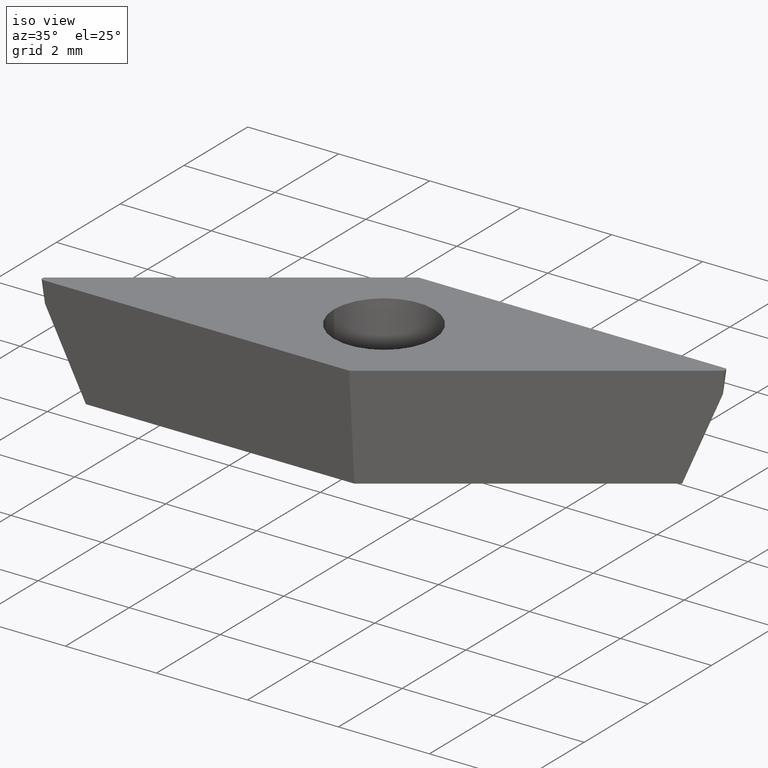
[diagram: clean part render]
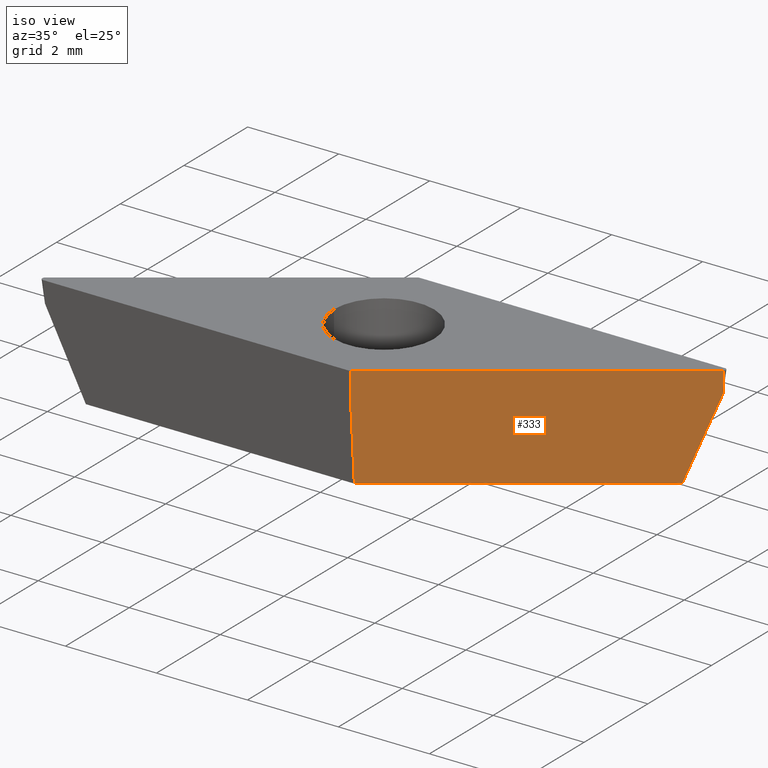
[diagram: same view with one face highlighted and labeled with its STEP entity id]
A machine part, iso view. The second image highlights one B-rep face of the part: STEP entity #333.
In plain terms, the highlighted face is a freeform B-spline surface patch.
Its self-contained STEP definition (entity closure, byte-faithful):
#14 = B_SPLINE_SURFACE_WITH_KNOTS ( 'NONE', 1, 3, ( 
 ( #274, #261, #273, #279 ),
 ( #278, #276, #286, #283 ) ),
 .UNSPECIFIED., .F., .F., .F.,
 ( 2, 2 ),
 ( 4, 4 ),
 ( 0.0000000000000000000, 1.000000000000000000 ),
 ( -0.006902565851283074700, -0.0001902956881417941400 ),
 .UNSPECIFIED. ) ;
#22 = EDGE_CURVE ( 'NONE', #332, #444, #191, .T. ) ;
#35 = EDGE_CURVE ( 'NONE', #318, #332, #443, .T. ) ;
#43 = CARTESIAN_POINT ( 'NONE',  ( 0.5337291963620123300, -1.692772745051087200, -2.379999999999999900 ) ) ;
#73 = FACE_OUTER_BOUND ( 'NONE', #364, .T. ) ;
#101 = CARTESIAN_POINT ( 'NONE',  ( 0.6413647547731018400, -1.974149122657340700, 0.0000000000000000000 ) ) ;
#108 = CARTESIAN_POINT ( 'NONE',  ( 5.737054617167976800, 1.808886372525546200, -1.434330392839228400 ) ) ;
#117 = VERTEX_POINT ( 'NONE', #317 ) ;
#119 = EDGE_CURVE ( 'NONE', #453, #378, #183, .T. ) ;
#121 = EDGE_CURVE ( 'NONE', #444, #378, #235, .T. ) ;
#125 = CARTESIAN_POINT ( 'NONE',  ( 6.105319994549239100, 1.925000000000001400, -0.4886607856784761000 ) ) ;
#130 = DIRECTION ( 'NONE',  ( 0.06990138369076599700, -0.09982952178648427100, 0.9925461516413219800 ) ) ;
#131 = LINE ( 'NONE', #176, #168 ) ;
#137 = DIRECTION ( 'NONE',  ( 0.8191520442889946900, 0.5735764363510419400, -0.0000000000000000000 ) ) ;
#140 = VECTOR ( 'NONE', #130, 1000.000000000000000 ) ;
#150 = CARTESIAN_POINT ( 'NONE',  ( 0.6069501685920401000, -1.925000000000002000, -0.4886607856784640500 ) ) ;
#168 = VECTOR ( 'NONE', #402, 1000.000000000000000 ) ;
#176 = CARTESIAN_POINT ( 'NONE',  ( 0.6413647547731018400, -1.974149122657340700, 0.0000000000000000000 ) ) ;
#179 = VECTOR ( 'NONE', #137, 1000.000000000000000 ) ;
#183 = LINE ( 'NONE', #190, #179 ) ;
#188 = CARTESIAN_POINT ( 'NONE',  ( 0.5459326917336836400, -1.731477287542573000, -2.064776797613077100 ) ) ;
#190 = CARTESIAN_POINT ( 'NONE',  ( 6.295615682691037700, 1.985000000000001400, 0.0000000000000000000 ) ) ;
#191 = B_SPLINE_CURVE_WITH_KNOTS ( 'NONE', 3,
 ( #431, #368, #370, #108, #464, #338, #376 ),
 .UNSPECIFIED., .F., .F.,
 ( 4, 3, 4 ),
 ( 0.0000000000000000000, 0.001021465989923606000, 0.002042931979847211600 ),
 .UNSPECIFIED. ) ;
#194 = EDGE_CURVE ( 'NONE', #453, #117, #131, .T. ) ;
#202 = CARTESIAN_POINT ( 'NONE',  ( 0.5581361871053548400, -1.770181830034058600, -1.749553595226154500 ) ) ;
#203 = CARTESIAN_POINT ( 'NONE',  ( 0.5703396824770261600, -1.808886372525544400, -1.434330392839231900 ) ) ;
#211 = CARTESIAN_POINT ( 'NONE',  ( 0.5947466732203687800, -1.886295457508516000, -0.8038839880653866300 ) ) ;
#212 = CARTESIAN_POINT ( 'NONE',  ( 6.139734580730305400, 1.875850877342661900, 0.0000000000000000000 ) ) ;
#219 = CARTESIAN_POINT ( 'NONE',  ( 0.5825431778486974700, -1.847590915017030400, -1.119107190452309300 ) ) ;
#224 = EDGE_CURVE ( 'NONE', #318, #117, #463, .T. ) ;
#230 = CARTESIAN_POINT ( 'NONE',  ( 5.368789239786762500, 1.692772745051088100, -2.379999999999999400 ) ) ;
#235 = LINE ( 'NONE', #428, #140 ) ;
#239 = CARTESIAN_POINT ( 'NONE',  ( 0.5337291963620123300, -1.692772745051087200, -2.379999999999999900 ) ) ;
#261 = CARTESIAN_POINT ( 'NONE',  ( 2.474154696759397700, -0.6908157893248112500, 0.0000000000000000000 ) ) ;
#273 = CARTESIAN_POINT ( 'NONE',  ( 4.306944638744942800, 0.5925175440087955300, 0.0000000000000000000 ) ) ;
#274 = CARTESIAN_POINT ( 'NONE',  ( 0.6413647547731018400, -1.974149122657340700, 0.0000000000000000000 ) ) ;
#276 = CARTESIAN_POINT ( 'NONE',  ( 2.273017095761504800, -0.4035615253787741000, -2.855999999999999400 ) ) ;
#278 = CARTESIAN_POINT ( 'NONE',  ( 0.4402271537752075500, -1.686894858711304200, -2.855999999999999400 ) ) ;
#279 = CARTESIAN_POINT ( 'NONE',  ( 6.139734580730305400, 1.875850877342661400, 0.0000000000000000000 ) ) ;
#283 = CARTESIAN_POINT ( 'NONE',  ( 5.938596979732410300, 2.163105141288697900, -2.855999999999999400 ) ) ;
#286 = CARTESIAN_POINT ( 'NONE',  ( 4.105807037747390500, 0.8797718079543441800, -2.855999999999999400 ) ) ;
#317 = CARTESIAN_POINT ( 'NONE',  ( 0.6069501685920401000, -1.925000000000002000, -0.4886607856784640500 ) ) ;
#318 = VERTEX_POINT ( 'NONE', #239 ) ;
#324 = ORIENTED_EDGE ( 'NONE', *, *, #119, .F. ) ;
#328 = ORIENTED_EDGE ( 'NONE', *, *, #194, .T. ) ;
#330 = ORIENTED_EDGE ( 'NONE', *, *, #224, .F. ) ;
#332 = VERTEX_POINT ( 'NONE', #230 ) ;
#333 = ADVANCED_FACE ( 'NONE', ( #73 ), #14, .T. ) ;
#334 = ORIENTED_EDGE ( 'NONE', *, *, #35, .T. ) ;
#337 = ORIENTED_EDGE ( 'NONE', *, *, #22, .T. ) ;
#338 = CARTESIAN_POINT ( 'NONE',  ( 5.982564868755474700, 1.886295457508516900, -0.8038839880653893000 ) ) ;
#344 = ORIENTED_EDGE ( 'NONE', *, *, #121, .T. ) ;
#364 = EDGE_LOOP ( 'NONE', ( #324, #328, #330, #334, #337, #344 ) ) ;
#368 = CARTESIAN_POINT ( 'NONE',  ( 5.491544365580495000, 1.731477287542574100, -2.064776797613073500 ) ) ;
#370 = CARTESIAN_POINT ( 'NONE',  ( 5.614299491374231900, 1.770181830034060600, -1.749553595226149400 ) ) ;
#376 = CARTESIAN_POINT ( 'NONE',  ( 6.105319994549239100, 1.925000000000001400, -0.4886607856784761000 ) ) ;
#378 = VERTEX_POINT ( 'NONE', #212 ) ;
#402 = DIRECTION ( 'NONE',  ( -0.06990138369076599700, 0.09982952178648427100, -0.9925461516413219800 ) ) ;
#428 = CARTESIAN_POINT ( 'NONE',  ( 6.139734580730305400, 1.875850877342661400, 0.0000000000000000000 ) ) ;
#431 = CARTESIAN_POINT ( 'NONE',  ( 5.368789239786762500, 1.692772745051088100, -2.379999999999999400 ) ) ;
#443 = B_SPLINE_CURVE_WITH_KNOTS ( 'NONE', 3,
 ( #459, #471, #486, #446 ),
 .UNSPECIFIED., .F., .F.,
 ( 4, 4 ),
 ( 0.0000000000000000000, 0.005902518436148567600 ),
 .UNSPECIFIED. ) ;
#444 = VERTEX_POINT ( 'NONE', #125 ) ;
#446 = CARTESIAN_POINT ( 'NONE',  ( 5.368789239786762500, 1.692772745051088100, -2.379999999999999400 ) ) ;
#453 = VERTEX_POINT ( 'NONE', #101 ) ;
#459 = CARTESIAN_POINT ( 'NONE',  ( 0.5337291963620123300, -1.692772745051087200, -2.379999999999999900 ) ) ;
#463 = B_SPLINE_CURVE_WITH_KNOTS ( 'NONE', 3,
 ( #43, #188, #202, #203, #219, #211, #150 ),
 .UNSPECIFIED., .F., .F.,
 ( 4, 3, 4 ),
 ( 0.0000000000000000000, 0.0009534745450647622600, 0.001906949090129524700 ),
 .UNSPECIFIED. ) ;
#464 = CARTESIAN_POINT ( 'NONE',  ( 5.859809742961721700, 1.847590915017031800, -1.119107190452307300 ) ) ;
#471 = CARTESIAN_POINT ( 'NONE',  ( 2.145415877504024800, -0.5642575816843080600, -2.380000000000000300 ) ) ;
#486 = CARTESIAN_POINT ( 'NONE',  ( 3.757102558645672600, 0.5642575816829925600, -2.380000000000000300 ) ) ;